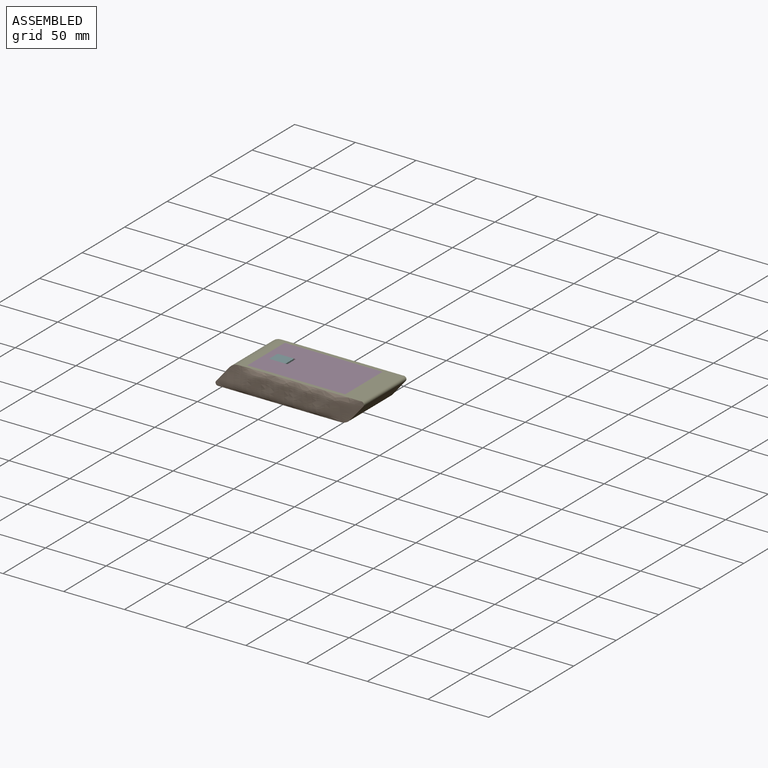
[diagram: assembled view]
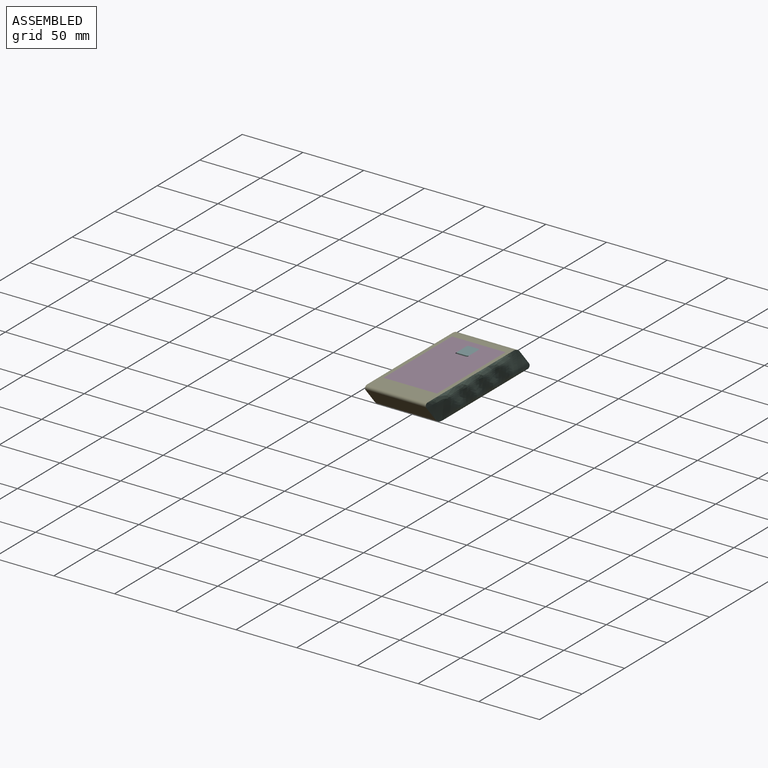
[diagram: assembled view, second angle]
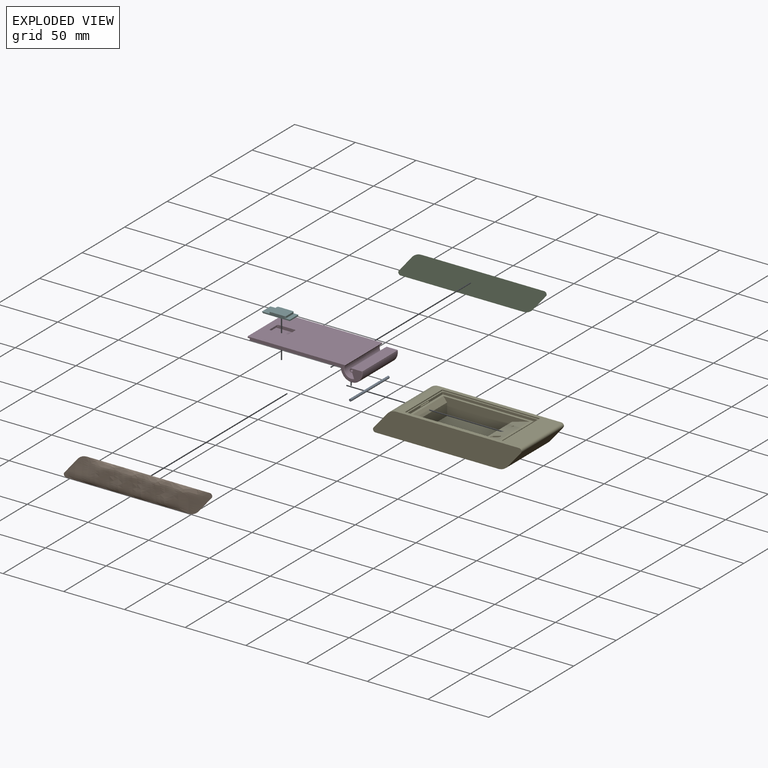
[diagram: exploded view]
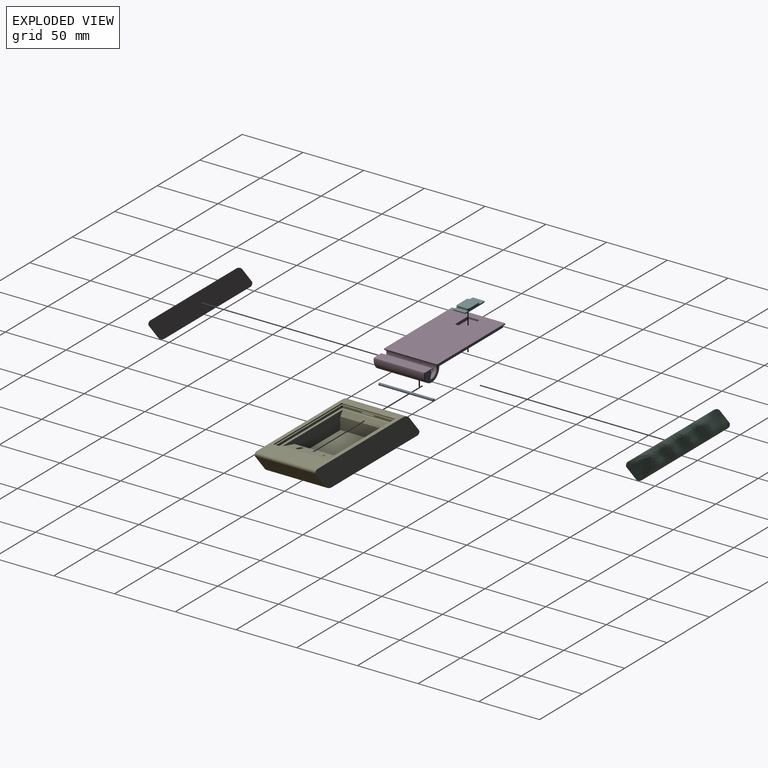
[diagram: exploded view, second angle]
ASSEMBLY  parts=6 mates=5
PART A: 3 faces, bbox 2x45x2 mm
  f0: cylinder r=1mm len=45mm, axis (0,1,0), area 282.7mm2, adj f1,f2
  f1: plane 2x2mm, normal (0,-1,0), area 3.1mm2, adj f0
  f2: plane 2x2mm, normal (0,1,0), area 3.1mm2, adj f0
PART B: 2 faces, bbox 122.5x3.4x21.2 mm
  f0: plane 122.43x20.21mm, normal (0,1,0), area 2185.9mm2, adj f1
  f1: bspline ~122.31x20.97mm, area 2254.9mm2, adj f0
PART C: 2 faces, bbox 122.5x3.4x21.2 mm
  f0: plane 122.43x20.21mm, normal (0,-1,0), area 2185.9mm2, adj f1
  f1: bspline ~122.31x20.97mm, area 2254.9mm2, adj f0
PART D: 38 faces, bbox 94.7x44x13.2 mm
  f0: plane 80.53x44mm, normal (0,0,1), area 3393.8mm2, adj f13,f14,f15,f16,f17,f18,f19,f20
  f1: plane 10x6mm, normal (0,0,-1), area 50.4mm2, adj f3,f30,f31,f35,f36,f37
  f2: cylinder r=6mm len=41mm, axis (0,1,0), area 555.9mm2, adj f8,f12,f22,f25
  f3: plane 41x2mm, normal (-1,0,0), area 72mm2, adj f1,f4,f12,f21,f24,f28,f30,f31
  f4: plane 75.5x42mm, normal (0,0,-1), area 3150mm2, adj f3,f5,f10,f11,f21,f23,f24,f26
  f5: cylinder r=9mm len=41mm, axis (0,1,0), area 1221mm2, adj f4,f6,f23,f26
  f6: plane 42x8.87mm, normal (0,0,1), area 372.6mm2, adj f5,f7,f10,f11,f23,f26
  f7: cylinder r=1.5mm len=42mm, axis (0,1,0), area 219.9mm2, adj f6,f8,f10,f11
  f8: plane 42x4.7mm, normal (-0.94,0,-0.34), area 189.1mm2, adj f2,f7,f10,f11,f22,f25
  f9: cylinder r=1mm len=42mm, axis (0,1,0), area 263.9mm2, adj f10,f11
  f10: plane 92x10.5mm, normal (0,-1,0), area 240.6mm2, adj f4,f6,f7,f8,f9,f12,f24,f25
  f11: plane 92x10.5mm, normal (0,1,0), area 240.6mm2, adj f4,f6,f7,f8,f9,f12,f21,f22
  f12: plane 80x44mm, normal (0,0,-1), area 229.6mm2, adj f2,f3,f10,f11,f13,f14,f15,f16
  f13: plane 43x1mm, normal (-1,0,0), area 43mm2, adj f0,f12,f17,f19
  f14: cylinder r=5.39mm len=43mm, axis (0,1,0), area 48.7mm2, adj f0,f12,f18,f20
  f15: plane 79.44x1mm, normal (0,-1,0), area 79.2mm2, adj f0,f12,f19,f20
  f16: plane 79.44x1mm, normal (0,1,0), area 79.2mm2, adj f0,f12,f17,f18
  f17: cylinder r=0.5mm len=1mm, axis (0,0,-1), area 0.8mm2, adj f0,f12,f13,f16
  f18: torus R=5.89mm, axis (0,-1,0), area 0.9mm2, adj f0,f12,f14,f16
  f19: cylinder r=0.5mm len=1mm, axis (0,0,1), area 0.8mm2, adj f0,f12,f13,f15
  f20: torus R=5.89mm, axis (0,-1,0), area 0.9mm2, adj f0,f12,f14,f15
  f21: cylinder r=0.5mm len=2mm, axis (0,0,-1), area 1.6mm2, adj f3,f4,f11,f12
  f22: torus R=6.5mm, axis (0,-1,0), area 10.9mm2, adj f2,f8,f11,f12
  f23: torus R=8.5mm, axis (0,-1,0), area 22.9mm2, adj f4,f5,f6,f11
  f24: cylinder r=0.5mm len=2mm, axis (0,0,1), area 1.6mm2, adj f3,f4,f10,f12
  f25: torus R=6.5mm, axis (0,-1,0), area 10.9mm2, adj f2,f8,f10,f12
  f26: torus R=8.5mm, axis (0,-1,0), area 22.9mm2, adj f4,f5,f6,f10
  f27: plane 10x6mm, normal (0,0,-1), area 50.4mm2, adj f29,f30,f31,f32,f33,f34
  f28: plane 25x10mm, normal (0,0,1), area 250mm2, adj f3,f29,f30,f31
  f29: plane 10x1mm, normal (-1,0,0), area 10mm2, adj f27,f28,f30,f31
  f30: plane 25x2.5mm, normal (0,1,0), area 44.5mm2, adj f0,f1,f3,f27,f28,f29,f32,f37
  f31: plane 25x2.5mm, normal (0,-1,0), area 44.5mm2, adj f0,f1,f3,f27,f28,f29,f34,f35
  f32: cylinder r=1mm len=1.5mm, axis (0,0,1), area 2.4mm2, adj f0,f27,f30,f33
  f33: plane 8x1.5mm, normal (-1,0,0), area 12mm2, adj f0,f27,f32,f34
  f34: cylinder r=1mm len=1.5mm, axis (0,0,1), area 2.4mm2, adj f0,f27,f31,f33
  f35: cylinder r=1mm len=1.5mm, axis (0,0,1), area 2.4mm2, adj f0,f1,f31,f36
  f36: plane 8x1.5mm, normal (1,0,0), area 12mm2, adj f0,f1,f35,f37
  f37: cylinder r=1mm len=1.5mm, axis (0,0,1), area 2.4mm2, adj f0,f1,f30,f36
PART E: 95 faces, bbox 122.2x50x20.5 mm
  f0: plane 38x14.46mm, normal (-0.27,0,0.96), area 545.9mm2, adj f1,f36,f37,f38,f43,f44,f45,f46
  f1: plane 75.5x42mm, normal (0,0,1), area 452mm2, adj f0,f17,f19,f20,f25,f27,f30,f33
  f2: plane 101.05x50mm, normal (0,0,1), area 1509.4mm2, adj f3,f9,f10,f11,f12,f14,f15,f16
  f3: cylinder r=10mm len=50mm, axis (0,1,0), area 436.3mm2, adj f2,f4,f10,f11
  f4: plane 50x13.14mm, normal (-0.77,0,0.64), area 857.8mm2, adj f3,f5,f10,f11
  f5: cylinder r=2mm len=50mm, axis (0,1,0), area 226.9mm2, adj f4,f6,f10,f11
  f6: plane 101.05x50mm, normal (0,0,-1), area 5052.4mm2, adj f5,f7,f10,f11
  f7: cylinder r=10mm len=50mm, axis (0,1,0), area 436.3mm2, adj f6,f8,f10,f11
  f8: plane 50x13.14mm, normal (0.77,0,-0.64), area 857.8mm2, adj f7,f9,f10,f11
  f9: cylinder r=2mm len=50mm, axis (0,1,0), area 226.9mm2, adj f2,f8,f10,f11
  f10: plane 122.2x20mm, normal (0,-1,0), area 2185.9mm2, adj f2,f3,f4,f5,f6,f7,f8,f9
  f11: plane 122.2x20mm, normal (0,1,0), area 2185.9mm2, adj f2,f3,f4,f5,f6,f7,f8,f9
  f12: plane 43x1mm, normal (1,0,0), area 43mm2, adj f2,f13,f21,f23
  f13: plane 80x44mm, normal (0,0,1), area 229.6mm2, adj f12,f14,f15,f16,f17,f18,f19,f20
  f14: cylinder r=5.39mm len=43mm, axis (0,1,0), area 48.7mm2, adj f2,f13,f22,f24
  f15: plane 79.44x1mm, normal (0,1,0), area 79.2mm2, adj f2,f13,f23,f24
  f16: plane 79.44x1mm, normal (0,-1,0), area 79.2mm2, adj f2,f13,f21,f22
  f17: plane 41x2mm, normal (1,0,0), area 72mm2, adj f1,f13,f25,f27,f59,f60,f61,f62
  f18: cylinder r=6mm len=41mm, axis (0,-1,0), area 83.6mm2, adj f13,f26,f28,f29
  f19: plane 92x10.5mm, normal (0,-1,0), area 279mm2, adj f1,f13,f27,f28,f29,f31,f32,f57
  f20: plane 92x10.5mm, normal (0,1,0), area 279mm2, adj f1,f13,f25,f26,f29,f31,f32,f56
  f21: cylinder r=0.5mm len=1mm, axis (0,0,1), area 0.8mm2, adj f2,f12,f13,f16
  f22: torus R=5.89mm, axis (0,-1,0), area 0.9mm2, adj f2,f13,f14,f16
  f23: cylinder r=0.5mm len=1mm, axis (0,0,-1), area 0.8mm2, adj f2,f12,f13,f15
  f24: torus R=5.89mm, axis (0,-1,0), area 0.9mm2, adj f2,f13,f14,f15
  f25: cylinder r=0.5mm len=2mm, axis (0,0,1), area 1.6mm2, adj f1,f13,f17,f20
  f26: torus R=6.5mm, axis (0,-1,0), area 1.6mm2, adj f13,f18,f20,f29
  f27: cylinder r=0.5mm len=2mm, axis (0,0,-1), area 1.6mm2, adj f1,f13,f17,f19
  f28: torus R=6.5mm, axis (0,-1,0), area 1.6mm2, adj f13,f18,f19,f29
  f29: plane 42x5mm, normal (0,0,-1), area 189.1mm2, adj f18,f19,f20,f26,f28,f32
  f30: cylinder r=9mm len=41mm, axis (0,1,0), area 1221mm2, adj f1,f31,f63,f64
  f31: plane 42x8.87mm, normal (0,0,-1), area 372.6mm2, adj f19,f20,f30,f32,f63,f64
  f32: cylinder r=1.5mm len=42mm, axis (0,1,0), area 99mm2, adj f19,f20,f29,f31
  f33: plane 38x4mm, normal (0.8,0,0.6), area 190mm2, adj f1,f34,f37,f38
  f34: plane 38x10mm, normal (1,0,0), area 380mm2, adj f33,f35,f37,f38
  f35: plane 50x38mm, normal (0,0,1), area 1900mm2, adj f34,f36,f37,f38
  f36: plane 38x10mm, normal (-0.94,0,0.33), area 403.1mm2, adj f0,f35,f37,f38
  f37: plane 71x14mm, normal (0,-1,0), area 766.8mm2, adj f0,f1,f33,f34,f35,f36
  f38: plane 71x14mm, normal (0,1,0), area 766.8mm2, adj f0,f1,f33,f34,f35,f36
  f39: plane 3x1.93mm, normal (-0.96,0,-0.27), area 6mm2, adj f40,f42,f47,f54
  f40: plane 3.42x2.73mm, normal (0,-1,0), area 6mm2, adj f39,f41,f47,f54
  f41: plane 3x1.93mm, normal (0.96,0,0.27), area 6mm2, adj f40,f42,f47,f54
  f42: plane 3.42x2.73mm, normal (0,1,0), area 6mm2, adj f39,f41,f47,f54
  f43: plane 6.58x4.49mm, normal (0,1,0), area 18mm2, adj f0,f44,f46,f47
  f44: cylinder r=1.3mm len=3.24mm, axis (-0.27,0,0.96), area 12.3mm2, adj f0,f43,f45,f47
  f45: plane 6.58x4.49mm, normal (0,-1,0), area 18mm2, adj f0,f44,f46,f47
  f46: cylinder r=1.3mm len=3.24mm, axis (-0.27,0,0.96), area 12.3mm2, adj f0,f43,f45,f47
  f47: plane 42x12.15mm, normal (0.27,0,-0.96), area 499.6mm2, adj f39,f40,f41,f42,f43,f44,f45,f46
  f48: plane 42x17.2mm, normal (0,0,1), area 722.3mm2, adj f49,f50,f51,f52
  f49: plane 42x9.89mm, normal (-0.96,0,-0.27), area 430.9mm2, adj f47,f48,f51,f52
  f50: plane 42x6.53mm, normal (0.94,0,-0.33), area 290.8mm2, adj f47,f48,f51,f52
  f51: plane 17.2x9.89mm, normal (0,1,0), area 120.8mm2, adj f47,f48,f49,f50
  f52: plane 17.2x9.89mm, normal (0,-1,0), area 120.8mm2, adj f47,f48,f49,f50
  f53: cylinder r=1mm len=2.19mm, axis (-0.27,0,0.96), area 6.3mm2, adj f0,f54
  f54: plane 3x2.89mm, normal (0.27,0,-0.96), area 5.9mm2, adj f39,f40,f41,f42,f53
  f55: plane 2x2mm, normal (0,1,0), area 3.1mm2, adj f56
  f56: cylinder r=1mm len=2mm, axis (0,1,0), area 9.4mm2, adj f20,f55
  f57: cylinder r=1mm len=2mm, axis (0,1,0), area 9.4mm2, adj f19,f58
  f58: plane 2x2mm, normal (0,-1,0), area 3.1mm2, adj f57
  f59: plane 10x1mm, normal (0,0,-1), area 10mm2, adj f17,f60,f61,f62
  f60: plane 10x1mm, normal (0.71,0,0.71), area 14.1mm2, adj f17,f59,f61,f62
  f61: plane 1x1mm, normal (0,-1,0), area 0.5mm2, adj f17,f59,f60
  f62: plane 1x1mm, normal (0,1,0), area 0.5mm2, adj f17,f59,f60
  f63: torus R=8.5mm, axis (0,-1,0), area 22.9mm2, adj f1,f19,f30,f31
  f64: torus R=8.5mm, axis (0,-1,0), area 22.9mm2, adj f1,f20,f30,f31
  f65: plane 42x9mm, normal (-1,0,0), area 378mm2, adj f66,f68,f69,f70
  f66: plane 42x14.62mm, normal (0,0,-1), area 614.1mm2, adj f65,f67,f69,f70
  f67: plane 42x9mm, normal (0.77,0,-0.64), area 493.4mm2, adj f66,f68,f69,f70
  f68: plane 42x22.17mm, normal (0,0,1), area 931.2mm2, adj f65,f67,f69,f70
  f69: plane 22.17x9mm, normal (0,1,0), area 165.6mm2, adj f65,f66,f67,f68
  f70: plane 22.17x9mm, normal (0,-1,0), area 165.6mm2, adj f65,f66,f67,f68
  f71: plane 42x1mm, normal (-1,0,0), area 42mm2, adj f72,f74,f75,f76
  f72: plane 50x42mm, normal (0,0,-1), area 2100mm2, adj f71,f73,f75,f76
  f73: plane 42x1mm, normal (1,0,0), area 42mm2, adj f72,f74,f75,f76
  f74: plane 50x42mm, normal (0,0,1), area 2100mm2, adj f71,f73,f75,f76
  f75: plane 50x1mm, normal (0,1,0), area 50mm2, adj f71,f72,f73,f74
  f76: plane 50x1mm, normal (0,-1,0), area 50mm2, adj f71,f72,f73,f74
  f77: plane 40x2mm, normal (-1,0,0), area 80mm2, adj f78,f80,f81,f82
  f78: plane 40x5mm, normal (0,0,-1), area 200mm2, adj f77,f79,f81,f82
  f79: plane 40x2mm, normal (1,0,0), area 80mm2, adj f78,f80,f81,f82
  f80: plane 40x5mm, normal (0,0,1), area 200mm2, adj f77,f79,f81,f82
  f81: plane 5x2mm, normal (0,-1,0), area 10mm2, adj f77,f78,f79,f80
  f82: plane 5x2mm, normal (0,1,0), area 10mm2, adj f77,f78,f79,f80
  f83: plane 40x2mm, normal (1,0,0), area 80mm2, adj f84,f86,f87,f88
  f84: plane 40x5mm, normal (0,0,1), area 200mm2, adj f83,f85,f87,f88
  f85: plane 40x2mm, normal (-1,0,0), area 80mm2, adj f84,f86,f87,f88
  f86: plane 40x5mm, normal (0,0,-1), area 200mm2, adj f83,f85,f87,f88
  f87: plane 5x2mm, normal (0,-1,0), area 10mm2, adj f83,f84,f85,f86
  f88: plane 5x2mm, normal (0,1,0), area 10mm2, adj f83,f84,f85,f86
  f89: plane 40x2mm, normal (-1,0,0), area 80mm2, adj f90,f92,f93,f94
  f90: plane 40x5mm, normal (0,0,-1), area 200mm2, adj f89,f91,f93,f94
  f91: plane 40x2mm, normal (1,0,0), area 80mm2, adj f90,f92,f93,f94
  f92: plane 40x5mm, normal (0,0,1), area 200mm2, adj f89,f91,f93,f94
  f93: plane 5x2mm, normal (0,-1,0), area 10mm2, adj f89,f90,f91,f92
  f94: plane 5x2mm, normal (0,1,0), area 10mm2, adj f89,f90,f91,f92
PART F: 14 faces, bbox 23x10x2.5 mm
  f0: plane 10x4.5mm, normal (0,0,1), area 35.4mm2, adj f4,f5,f6,f7,f8,f9
  f1: plane 10x7mm, normal (0,0,1), area 60.4mm2, adj f2,f5,f6,f10,f11,f12
  f2: plane 10x1mm, normal (-0.71,0,-0.71), area 14.1mm2, adj f1,f3,f5,f6
  f3: plane 22x10mm, normal (0,0,-1), area 220mm2, adj f2,f4,f5,f6
  f4: plane 10x1mm, normal (1,0,0), area 10mm2, adj f0,f3,f5,f6
  f5: plane 23x2.5mm, normal (0,-1,0), area 39.8mm2, adj f0,f1,f2,f3,f4,f7,f12,f13
  f6: plane 23x2.5mm, normal (0,1,0), area 39.8mm2, adj f0,f1,f2,f3,f4,f9,f10,f13
  f7: cylinder r=1mm len=1.5mm, axis (0,0,1), area 2.4mm2, adj f0,f5,f8,f13
  f8: plane 8x1.5mm, normal (1,0,0), area 12mm2, adj f0,f7,f9,f13
  f9: cylinder r=1mm len=1.5mm, axis (0,0,1), area 2.4mm2, adj f0,f6,f8,f13
  f10: cylinder r=1mm len=1.5mm, axis (0,0,1), area 2.4mm2, adj f1,f6,f11,f13
  f11: plane 8x1.5mm, normal (-1,0,0), area 12mm2, adj f1,f10,f12,f13
  f12: cylinder r=1mm len=1.5mm, axis (0,0,1), area 2.4mm2, adj f1,f5,f11,f13
  f13: plane 13.5x10mm, normal (0,0,1), area 134.1mm2, adj f5,f6,f7,f8,f9,f10,f11,f12
PLACE A rot(axis=(0.71,0,-0.71),180deg) t=(83.63,0,149.89)mm
PLACE B t=(-76.26,0,-10)mm
PLACE C t=(-76.26,0,-10)mm
PLACE D t=(-76.26,0,-10)mm
PLACE E t=(-76.26,0,-10)mm
PLACE F rot(axis=(0.26,-0.53,0.81),0deg) t=(-76.26,0,-10)mm
MATE fastened C.f0 <-> E.f11  axis (0,-1,0) through (8.58,25,10)mm
MATE slider A.f0 <-> D.f2  axis (0,-1,0) through (56.63,0,17)mm
MATE pin_slot D.f0 <-> F.f13  axis (0,0,1) through (-22.37,0,20)mm
MATE cylindrical D.f2 <-> E.f14  axis (0,1,0) through (56.63,0,17)mm
MATE fastened B.f0 <-> E.f10  axis (0,1,0) through (8.58,-25,10)mm
